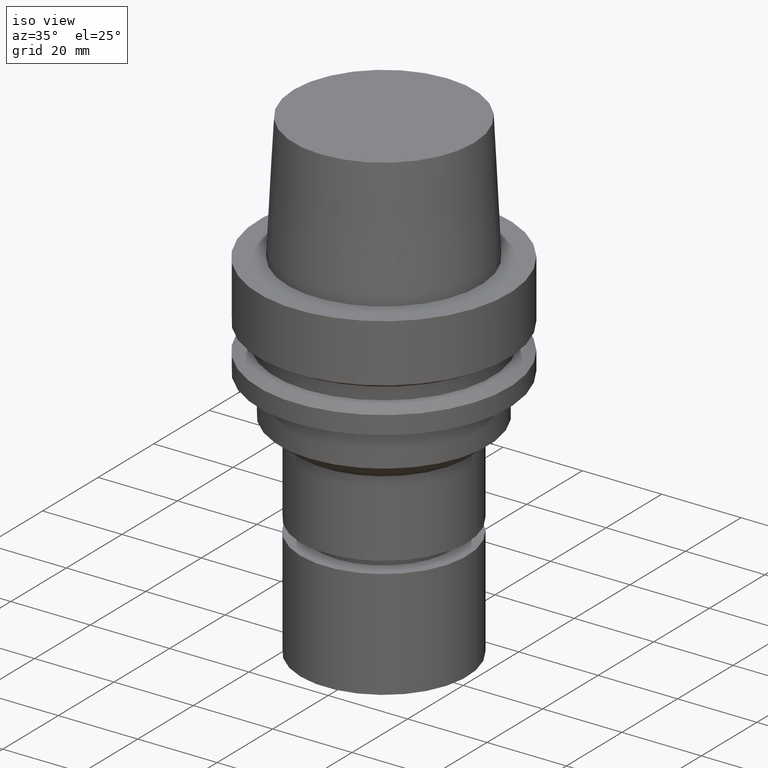
[diagram: clean part render]
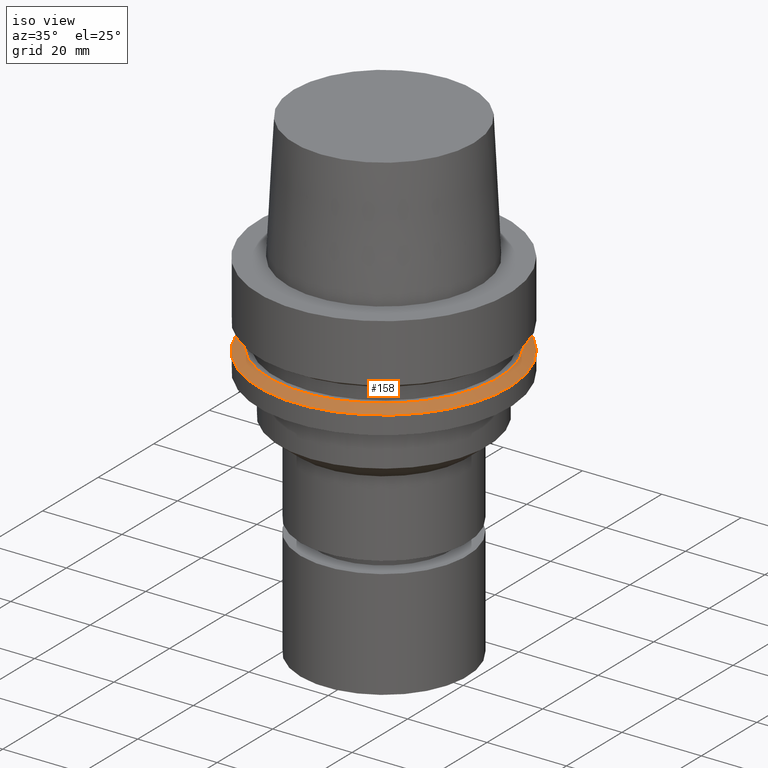
[diagram: same view with one face highlighted and labeled with its STEP entity id]
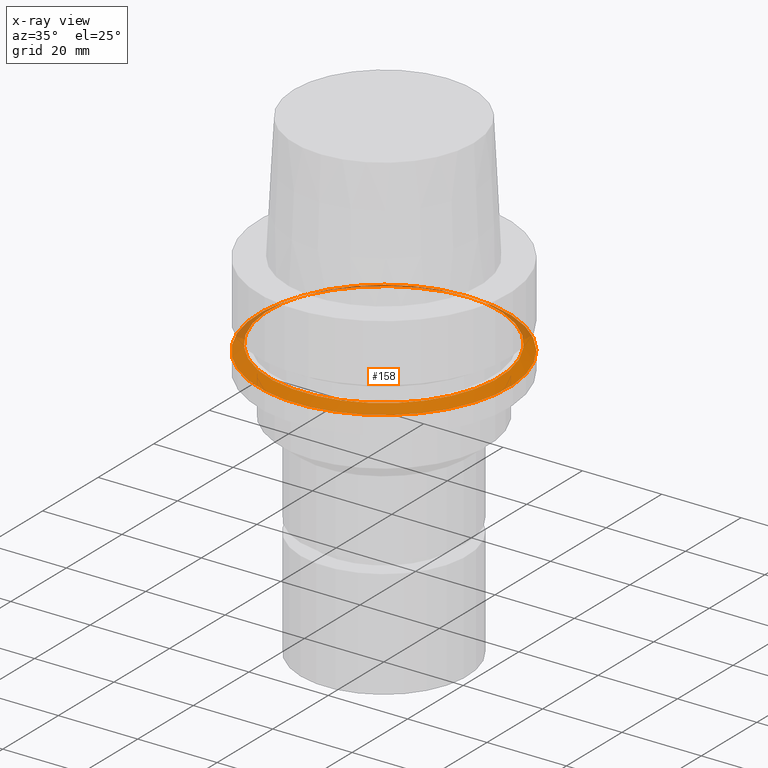
[diagram: x-ray of the same camera — body ghosted, the highlighted face saturated]
A machine part, iso view. The second image highlights one B-rep face of the part: STEP entity #158.
The next image is the same camera in x-ray: the body ghosted, the highlighted face saturated — about 12% of this face is hidden behind the body in this view.
In plain terms, the highlighted conical surface has half-angle 60 deg.
Its self-contained STEP definition (entity closure, byte-faithful):
#124=EDGE_CURVE('Unnamed[1]',#287,#287,#288,.T.);
#158=ADVANCED_FACE('Unnamed[1]',(#336,#337),#338,.T.);
#175=EDGE_CURVE('Unnamed[1]',#363,#363,#364,.T.);
#287=VERTEX_POINT('',#496);
#288=CIRCLE('',#497,31.5);
#336=FACE_BOUND('',#556,.T.);
#337=FACE_BOUND('',#557,.T.);
#338=CONICAL_SURFACE('',#558,30.1987976320959,1.04719755119657);
#363=VERTEX_POINT('',#590);
#364=CIRCLE('',#591,28.8975952641919);
#496=CARTESIAN_POINT('',(1.30899429078397E-015,31.5,-21.3774990747592));
#497=AXIS2_PLACEMENT_3D('',#713,#714,#715);
#556=EDGE_LOOP('',(#763));
#557=EDGE_LOOP('',(#764));
#558=AXIS2_PLACEMENT_3D('',#765,#766,#767);
#590=CARTESIAN_POINT('',(1.21699275665268E-015,28.8975952641919,-19.875));
#591=AXIS2_PLACEMENT_3D('',#794,#795,#796);
#713=CARTESIAN_POINT('',(1.30899429078397E-015,2.61798858156794E-015,-21.3774990747592));
#714=DIRECTION('',(-6.12323399573677E-017,-1.22464679914735E-016,1.0));
#715=DIRECTION('',(-1.23259516440783E-032,1.0,1.22464679914735E-016));
#763=ORIENTED_EDGE('',*,*,#175,.F.);
#764=ORIENTED_EDGE('',*,*,#124,.T.);
#765=CARTESIAN_POINT('',(1.26299352371833E-015,2.52598704743665E-015,-20.6262495373796));
#766=DIRECTION('',(6.12323399573677E-017,1.22464679914735E-016,-1.0));
#767=DIRECTION('',(-1.23259516440783E-032,1.0,1.22464679914735E-016));
#794=CARTESIAN_POINT('',(1.21699275665268E-015,2.43398551330536E-015,-19.875));
#795=DIRECTION('',(-6.12323399573677E-017,-1.22464679914735E-016,1.0));
#796=DIRECTION('',(-1.23259516440783E-032,1.0,1.22464679914735E-016));